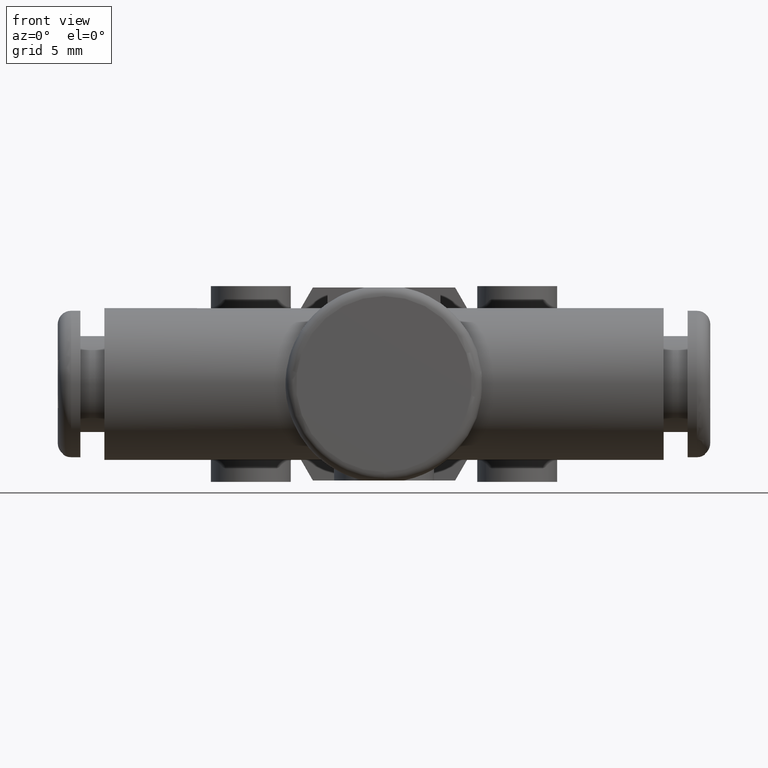
[diagram: clean part render]
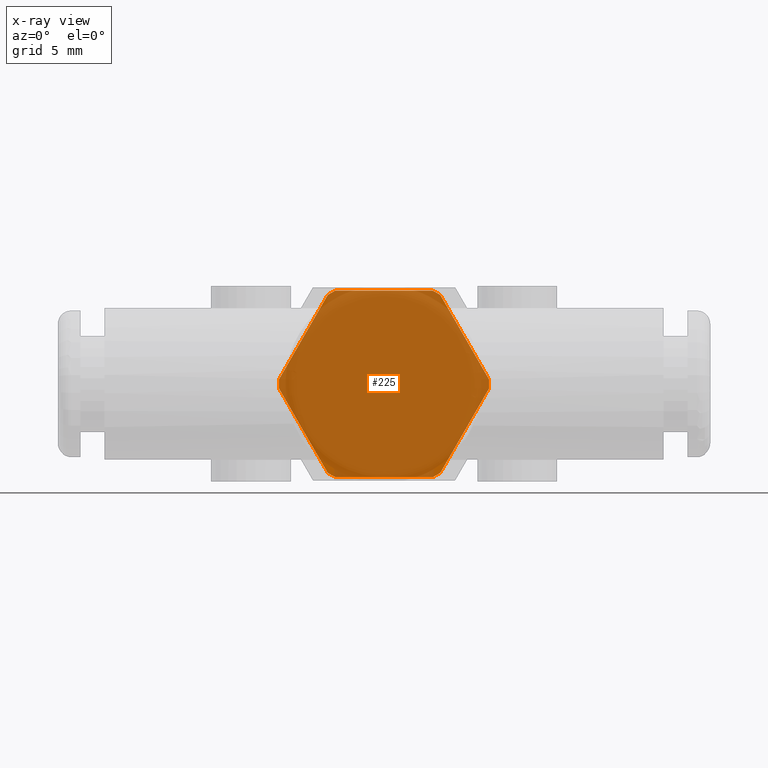
[diagram: x-ray — body ghosted, one internal face saturated and labeled with its STEP entity id]
A machine part, front view, then the same camera in x-ray: the body is ghosted and one INTERNAL B-rep face — a face not visible from any outside direction — is saturated and labeled: STEP entity #225.
In plain terms, the highlighted planar face has unit normal (0, 1, 0).
Its self-contained STEP definition (entity closure, byte-faithful):
#225 = ADVANCED_FACE( '', ( #512 ), #513, .F. );
#512 = FACE_OUTER_BOUND( '', #938, .T. );
#513 = PLANE( '', #939 );
#938 = EDGE_LOOP( '', ( #1377, #1378, #1379, #1380, #1381, #1382, #1383, #1384, #1385, #1386, #1387, #1388 ) );
#939 = AXIS2_PLACEMENT_3D( '', #1389, #1390, #1391 );
#1377 = ORIENTED_EDGE( '', *, *, #2314, .F. );
#1378 = ORIENTED_EDGE( '', *, *, #2315, .T. );
#1379 = ORIENTED_EDGE( '', *, *, #2316, .F. );
#1380 = ORIENTED_EDGE( '', *, *, #2317, .T. );
#1381 = ORIENTED_EDGE( '', *, *, #2318, .F. );
#1382 = ORIENTED_EDGE( '', *, *, #2319, .T. );
#1383 = ORIENTED_EDGE( '', *, *, #2320, .F. );
#1384 = ORIENTED_EDGE( '', *, *, #2321, .T. );
#1385 = ORIENTED_EDGE( '', *, *, #2322, .F. );
#1386 = ORIENTED_EDGE( '', *, *, #2323, .T. );
#1387 = ORIENTED_EDGE( '', *, *, #2324, .F. );
#1388 = ORIENTED_EDGE( '', *, *, #2325, .T. );
#1389 = CARTESIAN_POINT( '', ( 0.000000000000000, 0.000000000000000, 0.000000000000000 ) );
#1390 = DIRECTION( '', ( 1.00000000000000, 0.000000000000000, 0.000000000000000 ) );
#1391 = DIRECTION( '', ( 0.000000000000000, 0.000000000000000, -1.00000000000000 ) );
#2314 = EDGE_CURVE( '', #2694, #2695, #2696, .T. );
#2315 = EDGE_CURVE( '', #2694, #2697, #2698, .T. );
#2316 = EDGE_CURVE( '', #2699, #2697, #2700, .T. );
#2317 = EDGE_CURVE( '', #2699, #2701, #2702, .T. );
#2318 = EDGE_CURVE( '', #2703, #2701, #2704, .T. );
#2319 = EDGE_CURVE( '', #2703, #2705, #2706, .T. );
#2320 = EDGE_CURVE( '', #2707, #2705, #2708, .T. );
#2321 = EDGE_CURVE( '', #2707, #2709, #2710, .T. );
#2322 = EDGE_CURVE( '', #2711, #2709, #2712, .T. );
#2323 = EDGE_CURVE( '', #2711, #2713, #2714, .T. );
#2324 = EDGE_CURVE( '', #2715, #2713, #2716, .T. );
#2325 = EDGE_CURVE( '', #2715, #2695, #2717, .T. );
#2694 = VERTEX_POINT( '', #3309 );
#2695 = VERTEX_POINT( '', #3310 );
#2696 = CIRCLE( '', #3311, 7.90000000000000 );
#2697 = VERTEX_POINT( '', #3312 );
#2698 = LINE( '', #3313, #3314 );
#2699 = VERTEX_POINT( '', #3315 );
#2700 = CIRCLE( '', #3316, 7.90000000000000 );
#2701 = VERTEX_POINT( '', #3317 );
#2702 = LINE( '', #3318, #3319 );
#2703 = VERTEX_POINT( '', #3320 );
#2704 = CIRCLE( '', #3321, 7.90000000000000 );
#2705 = VERTEX_POINT( '', #3322 );
#2706 = LINE( '', #3323, #3324 );
#2707 = VERTEX_POINT( '', #3325 );
#2708 = CIRCLE( '', #3326, 7.90000000000000 );
#2709 = VERTEX_POINT( '', #3327 );
#2710 = LINE( '', #3328, #3329 );
#2711 = VERTEX_POINT( '', #3330 );
#2712 = CIRCLE( '', #3331, 7.90000000000000 );
#2713 = VERTEX_POINT( '', #3332 );
#2714 = LINE( '', #3333, #3334 );
#2715 = VERTEX_POINT( '', #3335 );
#2716 = CIRCLE( '', #3336, 7.90000000000000 );
#2717 = LINE( '', #3337, #3338 );
#3309 = CARTESIAN_POINT( '', ( 0.000000000000000, -3.66196668472011, 7.00000000000000 ) );
#3310 = CARTESIAN_POINT( '', ( 0.000000000000000, -4.23119448413102, 6.67135617677990 ) );
#3311 = AXIS2_PLACEMENT_3D( '', #4454, #4455, #4456 );
#3312 = CARTESIAN_POINT( '', ( 0.000000000000000, 3.66196668472011, 7.00000000000000 ) );
#3313 = CARTESIAN_POINT( '', ( 0.000000000000000, 0.000000000000000, 7.00000000000000 ) );
#3314 = VECTOR( '', #4457, 1000.00000000000 );
#3315 = CARTESIAN_POINT( '', ( 0.000000000000000, 4.23119448413102, 6.67135617677990 ) );
#3316 = AXIS2_PLACEMENT_3D( '', #4458, #4459, #4460 );
#3317 = CARTESIAN_POINT( '', ( 0.000000000000000, 7.89316116885113, 0.328643823220104 ) );
#3318 = CARTESIAN_POINT( '', ( 0.000000000000000, 6.06217782649107, 3.50000000000000 ) );
#3319 = VECTOR( '', #4461, 1000.00000000000 );
#3320 = CARTESIAN_POINT( '', ( 0.000000000000000, 7.89316116885113, -0.328643823220103 ) );
#3321 = AXIS2_PLACEMENT_3D( '', #4462, #4463, #4464 );
#3322 = CARTESIAN_POINT( '', ( 0.000000000000000, 4.23119448413102, -6.67135617677990 ) );
#3323 = CARTESIAN_POINT( '', ( 0.000000000000000, 6.06217782649107, -3.50000000000000 ) );
#3324 = VECTOR( '', #4465, 1000.00000000000 );
#3325 = CARTESIAN_POINT( '', ( 0.000000000000000, 3.66196668472011, -7.00000000000000 ) );
#3326 = AXIS2_PLACEMENT_3D( '', #4466, #4467, #4468 );
#3327 = CARTESIAN_POINT( '', ( 0.000000000000000, -3.66196668472011, -7.00000000000000 ) );
#3328 = CARTESIAN_POINT( '', ( 0.000000000000000, 0.000000000000000, -7.00000000000000 ) );
#3329 = VECTOR( '', #4469, 1000.00000000000 );
#3330 = CARTESIAN_POINT( '', ( 0.000000000000000, -4.23119448413102, -6.67135617677990 ) );
#3331 = AXIS2_PLACEMENT_3D( '', #4470, #4471, #4472 );
#3332 = CARTESIAN_POINT( '', ( 0.000000000000000, -7.89316116885113, -0.328643823220104 ) );
#3333 = CARTESIAN_POINT( '', ( 0.000000000000000, -6.06217782649107, -3.50000000000000 ) );
#3334 = VECTOR( '', #4473, 1000.00000000000 );
#3335 = CARTESIAN_POINT( '', ( 0.000000000000000, -7.89316116885113, 0.328643823220103 ) );
#3336 = AXIS2_PLACEMENT_3D( '', #4474, #4475, #4476 );
#3337 = CARTESIAN_POINT( '', ( 0.000000000000000, -6.06217782649107, 3.50000000000000 ) );
#3338 = VECTOR( '', #4477, 1000.00000000000 );
#4454 = CARTESIAN_POINT( '', ( 0.000000000000000, 0.000000000000000, 0.000000000000000 ) );
#4455 = DIRECTION( '', ( 1.00000000000000, 0.000000000000000, 0.000000000000000 ) );
#4456 = DIRECTION( '', ( 0.000000000000000, 0.000000000000000, -1.00000000000000 ) );
#4457 = DIRECTION( '', ( -0.000000000000000, 1.00000000000000, 0.000000000000000 ) );
#4458 = CARTESIAN_POINT( '', ( 0.000000000000000, 0.000000000000000, 0.000000000000000 ) );
#4459 = DIRECTION( '', ( 1.00000000000000, 0.000000000000000, 0.000000000000000 ) );
#4460 = DIRECTION( '', ( 0.000000000000000, 0.000000000000000, -1.00000000000000 ) );
#4461 = DIRECTION( '', ( 0.000000000000000, 0.500000000000000, -0.866025403784439 ) );
#4462 = CARTESIAN_POINT( '', ( 0.000000000000000, 0.000000000000000, 0.000000000000000 ) );
#4463 = DIRECTION( '', ( 1.00000000000000, 0.000000000000000, 0.000000000000000 ) );
#4464 = DIRECTION( '', ( 0.000000000000000, 0.000000000000000, -1.00000000000000 ) );
#4465 = DIRECTION( '', ( 0.000000000000000, -0.500000000000000, -0.866025403784439 ) );
#4466 = CARTESIAN_POINT( '', ( 0.000000000000000, 0.000000000000000, 0.000000000000000 ) );
#4467 = DIRECTION( '', ( 1.00000000000000, 0.000000000000000, 0.000000000000000 ) );
#4468 = DIRECTION( '', ( 0.000000000000000, 0.000000000000000, -1.00000000000000 ) );
#4469 = DIRECTION( '', ( 0.000000000000000, -1.00000000000000, 0.000000000000000 ) );
#4470 = CARTESIAN_POINT( '', ( 0.000000000000000, 0.000000000000000, 0.000000000000000 ) );
#4471 = DIRECTION( '', ( 1.00000000000000, 0.000000000000000, 0.000000000000000 ) );
#4472 = DIRECTION( '', ( 0.000000000000000, 0.000000000000000, -1.00000000000000 ) );
#4473 = DIRECTION( '', ( 0.000000000000000, -0.500000000000000, 0.866025403784439 ) );
#4474 = CARTESIAN_POINT( '', ( 0.000000000000000, 0.000000000000000, 0.000000000000000 ) );
#4475 = DIRECTION( '', ( 1.00000000000000, 0.000000000000000, 0.000000000000000 ) );
#4476 = DIRECTION( '', ( 0.000000000000000, 0.000000000000000, -1.00000000000000 ) );
#4477 = DIRECTION( '', ( -0.000000000000000, 0.500000000000000, 0.866025403784439 ) );